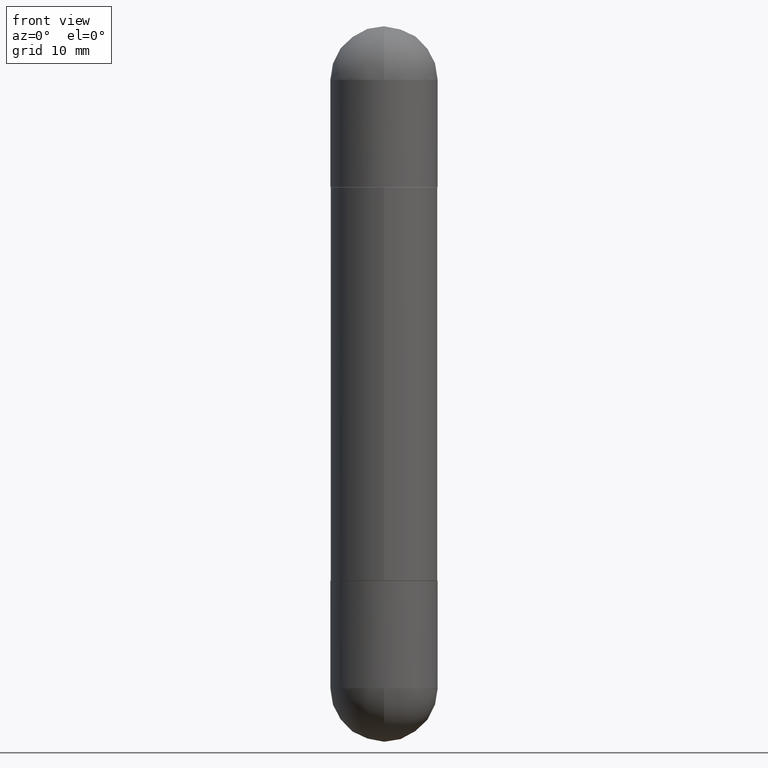
[diagram: clean part render]
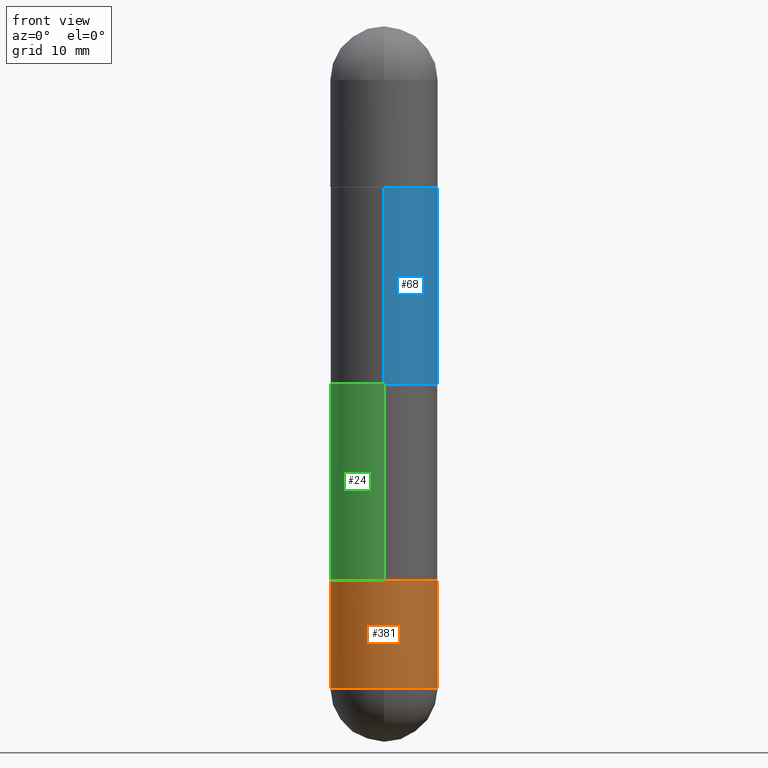
[diagram: same view with three faces highlighted in distinct colors, each labeled with its STEP entity id]
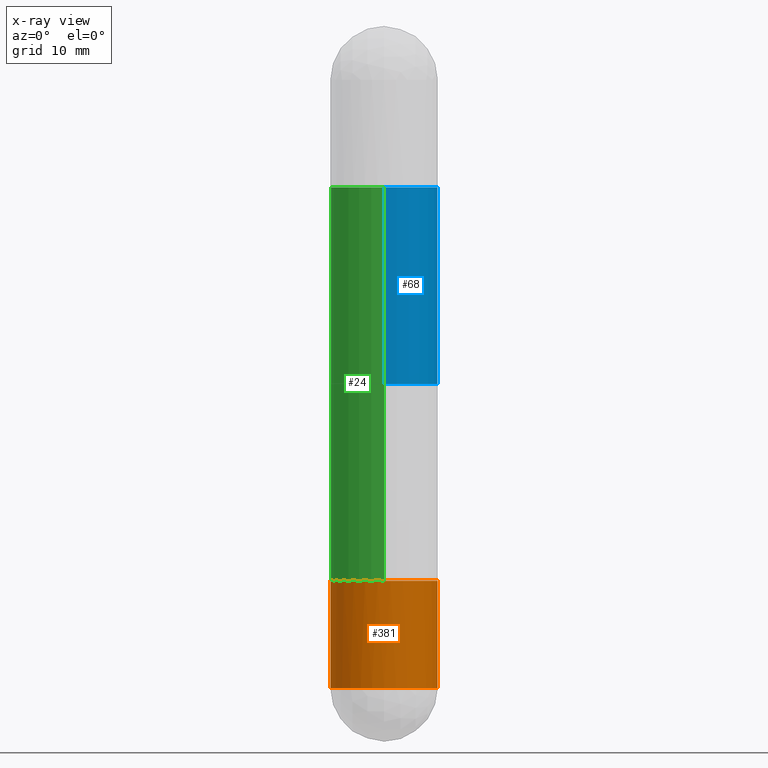
[diagram: x-ray of the same camera — body ghosted, the three highlighted faces saturated]
A machine part, front view with three faces highlighted in distinct colors.
The next image is the same camera in x-ray (body ghosted, the three faces saturated) — at least one of them is partly hidden behind the body in this view.
Their STEP definitions:

[orange] entity #381 — the highlighted cylindrical surface (partial cylindrical patch) has radius 4.7625 mm, axis along (-0, 0, 1).
#8 = VERTEX_POINT ( 'NONE', #595 ) ;
#33 = DIRECTION ( 'NONE',  ( -2.445468806185136597E-29, 3.491481338843145583E-15, 1.000000000000000000 ) ) ;
#40 = CIRCLE ( 'NONE', #230, 0.1875000000000000555 ) ;
#44 = DIRECTION ( 'NONE',  ( -2.445468806185136877E-29, 3.491481338843145188E-15, 1.000000000000000000 ) ) ;
#49 = DIRECTION ( 'NONE',  ( 1.000000000000000000, -6.982962677686266711E-15, 0.000000000000000000 ) ) ;
#86 = CARTESIAN_POINT ( 'NONE',  ( 0.000000000000000000, 0.000000000000000000, 0.000000000000000000 ) ) ;
#105 = ORIENTED_EDGE ( 'NONE', *, *, #336, .T. ) ;
#113 = LINE ( 'NONE', #238, #563 ) ;
#120 = ORIENTED_EDGE ( 'NONE', *, *, #769, .T. ) ;
#143 = VERTEX_POINT ( 'NONE', #606 ) ;
#170 = DIRECTION ( 'NONE',  ( -2.445468806185136597E-29, 3.491481338843145583E-15, 1.000000000000000000 ) ) ;
#180 = EDGE_CURVE ( 'NONE', #499, #8, #795, .T. ) ;
#186 = EDGE_CURVE ( 'NONE', #143, #631, #113, .T. ) ;
#219 = CARTESIAN_POINT ( 'NONE',  ( -1.332267629550134009E-15, -0.1875000000000084932, -2.312499999999999556 ) ) ;
#226 = CARTESIAN_POINT ( 'NONE',  ( 5.655146614303128380E-29, -8.074050596074775072E-15, -2.312500000000000000 ) ) ;
#230 = AXIS2_PLACEMENT_3D ( 'NONE', #300, #666, #543 ) ;
#238 = CARTESIAN_POINT ( 'NONE',  ( -0.1875000000000000555, 1.332267629550188243E-15, -9.223003294227950793E-30 ) ) ;
#259 = EDGE_CURVE ( 'NONE', #631, #700, #781, .T. ) ;
#300 = CARTESIAN_POINT ( 'NONE',  ( 5.655146614303128380E-29, -8.074050596074775072E-15, -2.312500000000000000 ) ) ;
#336 = EDGE_CURVE ( 'NONE', #143, #499, #40, .T. ) ;
#338 = CYLINDRICAL_SURFACE ( 'NONE', #475, 0.1875000000000000555 ) ;
#360 = DIRECTION ( 'NONE',  ( 1.000000000000000000, -6.982962677686270655E-15, 0.000000000000000000 ) ) ;
#381 = ADVANCED_FACE ( 'NONE', ( #453 ), #338, .T. ) ;
#388 = ORIENTED_EDGE ( 'NONE', *, *, #180, .T. ) ;
#402 = CARTESIAN_POINT ( 'NONE',  ( 0.1875000000000000555, -1.309305502066175205E-15, 9.142831454617382414E-30 ) ) ;
#427 = VECTOR ( 'NONE', #711, 39.37007874015748143 ) ;
#453 = FACE_OUTER_BOUND ( 'NONE', #512, .T. ) ;
#455 = CARTESIAN_POINT ( 'NONE',  ( -0.1875000000000000278, -6.088003085826206921E-15, -1.937999999999999945 ) ) ;
#475 = AXIS2_PLACEMENT_3D ( 'NONE', #86, #573, #643 ) ;
#481 = CARTESIAN_POINT ( 'NONE',  ( 4.739318546386794397E-29, -6.766490834678016045E-15, -1.937999999999999945 ) ) ;
#499 = VERTEX_POINT ( 'NONE', #219 ) ;
#512 = EDGE_LOOP ( 'NONE', ( #650, #105, #388, #120, #531 ) ) ;
#521 = CARTESIAN_POINT ( 'NONE',  ( 0.1875000000000000278, -8.075796336744191053E-15, -1.937999999999999945 ) ) ;
#531 = ORIENTED_EDGE ( 'NONE', *, *, #259, .F. ) ;
#543 = DIRECTION ( 'NONE',  ( 1.000000000000000000, -6.982962677686270655E-15, 0.000000000000000000 ) ) ;
#563 = VECTOR ( 'NONE', #44, 39.37007874015748143 ) ;
#573 = DIRECTION ( 'NONE',  ( -2.445468806185136597E-29, 3.491481338843145583E-15, 1.000000000000000000 ) ) ;
#575 = LINE ( 'NONE', #402, #427 ) ;
#595 = CARTESIAN_POINT ( 'NONE',  ( 0.1875000000000000555, -8.729576217442571356E-15, -2.312500000000000000 ) ) ;
#606 = CARTESIAN_POINT ( 'NONE',  ( -0.1875000000000000555, -6.088003085826207710E-15, -2.312500000000000000 ) ) ;
#631 = VERTEX_POINT ( 'NONE', #455 ) ;
#643 = DIRECTION ( 'NONE',  ( 1.000000000000000000, -6.982962677686265922E-15, 4.876176775795935793E-29 ) ) ;
#650 = ORIENTED_EDGE ( 'NONE', *, *, #186, .F. ) ;
#666 = DIRECTION ( 'NONE',  ( -2.445468806185136597E-29, 3.491481338843145583E-15, 1.000000000000000000 ) ) ;
#674 = AXIS2_PLACEMENT_3D ( 'NONE', #481, #33, #49 ) ;
#699 = AXIS2_PLACEMENT_3D ( 'NONE', #226, #170, #360 ) ;
#700 = VERTEX_POINT ( 'NONE', #521 ) ;
#711 = DIRECTION ( 'NONE',  ( -2.445468806185136877E-29, 3.491481338843145188E-15, 1.000000000000000000 ) ) ;
#769 = EDGE_CURVE ( 'NONE', #8, #700, #575, .T. ) ;
#781 = CIRCLE ( 'NONE', #674, 0.1875000000000000278 ) ;
#795 = CIRCLE ( 'NONE', #699, 0.1875000000000000555 ) ;

[blue] entity #68 — the highlighted cylindrical surface (partial cylindrical patch) has radius 4.7625 mm, axis along (-0, 0, -1).
#42 = VERTEX_POINT ( 'NONE', #207 ) ;
#50 = EDGE_CURVE ( 'NONE', #610, #195, #644, .T. ) ;
#68 = ADVANCED_FACE ( 'NONE', ( #396 ), #282, .T. ) ;
#84 = CARTESIAN_POINT ( 'NONE',  ( 4.736318171556000237E-29, -6.763794010349701520E-15, -0.5630000000000008331 ) ) ;
#98 = LINE ( 'NONE', #607, #627 ) ;
#114 = DIRECTION ( 'NONE',  ( -2.445182329146102955E-29, 3.491891590268302774E-15, -1.000000000000000000 ) ) ;
#155 = DIRECTION ( 'NONE',  ( -2.445182329146102675E-29, 3.491891590268302774E-15, -1.000000000000000000 ) ) ;
#160 = DIRECTION ( 'NONE',  ( 2.445182329146102675E-29, -3.491891590268302774E-15, 1.000000000000000000 ) ) ;
#195 = VERTEX_POINT ( 'NONE', #429 ) ;
#207 = CARTESIAN_POINT ( 'NONE',  ( -1.309305502066136946E-15, -0.1875000000000044964, -1.250000000000000222 ) ) ;
#229 = AXIS2_PLACEMENT_3D ( 'NONE', #724, #155, #403 ) ;
#233 = CIRCLE ( 'NONE', #694, 0.1875000000000001110 ) ;
#239 = CARTESIAN_POINT ( 'NONE',  ( 1.286343374582209894E-15, 0.1874999999999957534, -1.250000000000000222 ) ) ;
#282 = CYLINDRICAL_SURFACE ( 'NONE', #229, 0.1875000000000001110 ) ;
#285 = ORIENTED_EDGE ( 'NONE', *, *, #50, .F. ) ;
#301 = EDGE_CURVE ( 'NONE', #610, #42, #98, .T. ) ;
#347 = DIRECTION ( 'NONE',  ( -2.445182329146102955E-29, 3.491891590268302774E-15, -1.000000000000000000 ) ) ;
#348 = EDGE_LOOP ( 'NONE', ( #469, #285, #352, #393 ) ) ;
#352 = ORIENTED_EDGE ( 'NONE', *, *, #301, .T. ) ;
#374 = VERTEX_POINT ( 'NONE', #239 ) ;
#393 = ORIENTED_EDGE ( 'NONE', *, *, #723, .F. ) ;
#396 = FACE_OUTER_BOUND ( 'NONE', #348, .T. ) ;
#399 = DIRECTION ( 'NONE',  ( -0.000000000000000000, -0.000000000000000000, -1.000000000000000000 ) ) ;
#403 = DIRECTION ( 'NONE',  ( -6.982962677686266711E-15, -1.000000000000000000, -2.913971193241879189E-15 ) ) ;
#429 = CARTESIAN_POINT ( 'NONE',  ( 1.286343374582210880E-15, 0.1874999999999935052, -0.5630000000000001670 ) ) ;
#469 = ORIENTED_EDGE ( 'NONE', *, *, #527, .F. ) ;
#482 = CARTESIAN_POINT ( 'NONE',  ( -1.309305502066128860E-15, -0.1875000000000069389, -0.5630000000000014992 ) ) ;
#514 = DIRECTION ( 'NONE',  ( -6.982962677686265922E-15, -1.000000000000000000, -3.642463991552347014E-15 ) ) ;
#527 = EDGE_CURVE ( 'NONE', #195, #374, #790, .T. ) ;
#607 = CARTESIAN_POINT ( 'NONE',  ( -1.309305502066175797E-15, -0.1875000000000001110, -2.500000000000001332 ) ) ;
#610 = VERTEX_POINT ( 'NONE', #482 ) ;
#627 = VECTOR ( 'NONE', #114, 39.37007874015748143 ) ;
#635 = VECTOR ( 'NONE', #347, 39.37007874015748143 ) ;
#644 = CIRCLE ( 'NONE', #812, 0.1875000000000002220 ) ;
#694 = AXIS2_PLACEMENT_3D ( 'NONE', #715, #399, #782 ) ;
#715 = CARTESIAN_POINT ( 'NONE',  ( 3.056477911432629185E-29, -4.364864487835379552E-15, -1.250000000000000222 ) ) ;
#723 = EDGE_CURVE ( 'NONE', #374, #42, #233, .T. ) ;
#724 = CARTESIAN_POINT ( 'NONE',  ( 0.000000000000000000, 0.000000000000000000, -2.500000000000000444 ) ) ;
#729 = CARTESIAN_POINT ( 'NONE',  ( 1.286343374582162760E-15, 0.1875000000000001110, -2.500000000000000000 ) ) ;
#782 = DIRECTION ( 'NONE',  ( -1.000000000000000000, 0.000000000000000000, 0.000000000000000000 ) ) ;
#790 = LINE ( 'NONE', #729, #635 ) ;
#812 = AXIS2_PLACEMENT_3D ( 'NONE', #84, #160, #514 ) ;

[green] entity #24 — the highlighted cylindrical surface (partial cylindrical patch) has radius 4.7625 mm, axis along (-0, 0, -1).
#15 = CARTESIAN_POINT ( 'NONE',  ( 1.286343374582210880E-15, 0.1874999999999935052, -0.5630000000000001670 ) ) ;
#24 = ADVANCED_FACE ( 'NONE', ( #274 ), #27, .T. ) ;
#27 = CYLINDRICAL_SURFACE ( 'NONE', #611, 0.1875000000000001110 ) ;
#28 = LINE ( 'NONE', #280, #564 ) ;
#36 = VERTEX_POINT ( 'NONE', #15 ) ;
#111 = AXIS2_PLACEMENT_3D ( 'NONE', #330, #580, #457 ) ;
#124 = CIRCLE ( 'NONE', #735, 0.1875000000000002220 ) ;
#184 = ORIENTED_EDGE ( 'NONE', *, *, #520, .T. ) ;
#236 = DIRECTION ( 'NONE',  ( -6.982962677686265922E-15, -1.000000000000000000, -3.642463991552347014E-15 ) ) ;
#242 = ORIENTED_EDGE ( 'NONE', *, *, #471, .T. ) ;
#246 = VERTEX_POINT ( 'NONE', #804 ) ;
#255 = CIRCLE ( 'NONE', #111, 0.1875000000000002220 ) ;
#274 = FACE_OUTER_BOUND ( 'NONE', #439, .T. ) ;
#280 = CARTESIAN_POINT ( 'NONE',  ( 1.286343374582162760E-15, 0.1875000000000001110, -2.500000000000000000 ) ) ;
#290 = CARTESIAN_POINT ( 'NONE',  ( 4.736318171556000237E-29, -6.763794010349701520E-15, -0.5630000000000008331 ) ) ;
#305 = ORIENTED_EDGE ( 'NONE', *, *, #598, .F. ) ;
#330 = CARTESIAN_POINT ( 'NONE',  ( 4.736318171556000237E-29, -6.763794010349701520E-15, -1.936999999999999833 ) ) ;
#367 = ORIENTED_EDGE ( 'NONE', *, *, #502, .F. ) ;
#389 = DIRECTION ( 'NONE',  ( -2.445182329146102675E-29, 3.491891590268302774E-15, -1.000000000000000000 ) ) ;
#400 = DIRECTION ( 'NONE',  ( -6.982962677686266711E-15, -1.000000000000000000, -2.913971193241879189E-15 ) ) ;
#401 = CARTESIAN_POINT ( 'NONE',  ( 1.286343374582193722E-15, 0.1874999999999934497, -1.937000000000000499 ) ) ;
#412 = VERTEX_POINT ( 'NONE', #401 ) ;
#439 = EDGE_LOOP ( 'NONE', ( #305, #184, #242, #367 ) ) ;
#457 = DIRECTION ( 'NONE',  ( -6.982962677686265922E-15, -1.000000000000000000, 2.913971193241877216E-15 ) ) ;
#465 = CARTESIAN_POINT ( 'NONE',  ( -1.309305502066175797E-15, -0.1875000000000001110, -2.500000000000001332 ) ) ;
#471 = EDGE_CURVE ( 'NONE', #412, #246, #255, .T. ) ;
#502 = EDGE_CURVE ( 'NONE', #817, #246, #584, .T. ) ;
#518 = CARTESIAN_POINT ( 'NONE',  ( 0.000000000000000000, 0.000000000000000000, -2.500000000000000444 ) ) ;
#520 = EDGE_CURVE ( 'NONE', #36, #412, #28, .T. ) ;
#533 = DIRECTION ( 'NONE',  ( -2.445182329146102955E-29, 3.491891590268302774E-15, -1.000000000000000000 ) ) ;
#544 = DIRECTION ( 'NONE',  ( 2.445182329146102675E-29, -3.491891590268302774E-15, 1.000000000000000000 ) ) ;
#564 = VECTOR ( 'NONE', #533, 39.37007874015748143 ) ;
#580 = DIRECTION ( 'NONE',  ( -2.445182329146102675E-29, 3.491891590268302774E-15, 1.000000000000000000 ) ) ;
#584 = LINE ( 'NONE', #465, #677 ) ;
#598 = EDGE_CURVE ( 'NONE', #36, #817, #124, .T. ) ;
#611 = AXIS2_PLACEMENT_3D ( 'NONE', #518, #389, #400 ) ;
#657 = DIRECTION ( 'NONE',  ( -2.445182329146102955E-29, 3.491891590268302774E-15, -1.000000000000000000 ) ) ;
#677 = VECTOR ( 'NONE', #657, 39.37007874015748143 ) ;
#735 = AXIS2_PLACEMENT_3D ( 'NONE', #290, #544, #236 ) ;
#774 = CARTESIAN_POINT ( 'NONE',  ( -1.309305502066128860E-15, -0.1875000000000069389, -0.5630000000000014992 ) ) ;
#804 = CARTESIAN_POINT ( 'NONE',  ( -1.309305502066129254E-15, -0.1875000000000069944, -1.936999999999999389 ) ) ;
#817 = VERTEX_POINT ( 'NONE', #774 ) ;